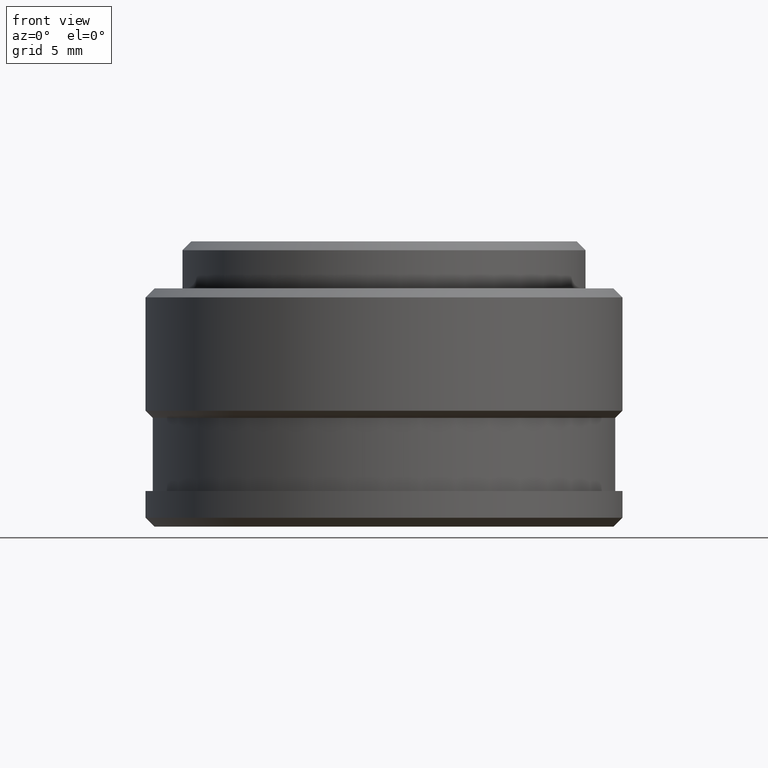
[diagram: clean part render]
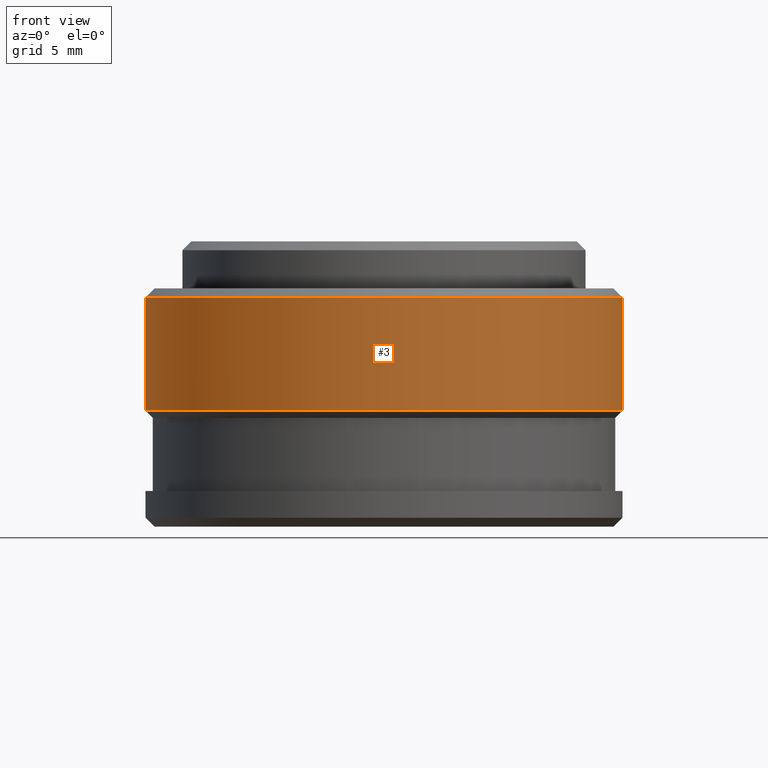
[diagram: same view with one face highlighted and labeled with its STEP entity id]
A machine part, front view. The second image highlights one B-rep face of the part: STEP entity #3.
In plain terms, the highlighted cylindrical surface (partial cylindrical patch) has radius 13.37 mm, axis along (-0, -0, -1).
Its self-contained STEP definition (entity closure, byte-faithful):
#3 = ADVANCED_FACE ( 'NONE', ( #484 ), #7, .T. ) ;
#5 = VERTEX_POINT ( 'NONE', #110 ) ;
#7 = CYLINDRICAL_SURFACE ( 'NONE', #476, 13.36999999999999900 ) ;
#20 = DIRECTION ( 'NONE',  ( -0.0000000000000000000, -0.0000000000000000000, -1.000000000000000000 ) ) ;
#57 = DIRECTION ( 'NONE',  ( 0.0000000000000000000, 0.0000000000000000000, -1.000000000000000000 ) ) ;
#68 = LINE ( 'NONE', #274, #422 ) ;
#83 = EDGE_CURVE ( 'NONE', #331, #504, #212, .T. ) ;
#94 = VECTOR ( 'NONE', #278, 1000.000000000000000 ) ;
#101 = AXIS2_PLACEMENT_3D ( 'NONE', #365, #57, #319 ) ;
#110 = CARTESIAN_POINT ( 'NONE',  ( -13.36999999999999900, 0.0000000000000000000, 6.500000000000008900 ) ) ;
#111 = CIRCLE ( 'NONE', #101, 13.36999999999999900 ) ;
#121 = EDGE_CURVE ( 'NONE', #331, #393, #111, .T. ) ;
#135 = DIRECTION ( 'NONE',  ( -0.0000000000000000000, -0.0000000000000000000, 1.000000000000000000 ) ) ;
#141 = EDGE_CURVE ( 'NONE', #393, #5, #68, .T. ) ;
#144 = DIRECTION ( 'NONE',  ( -0.0000000000000000000, -0.0000000000000000000, -1.000000000000000000 ) ) ;
#151 = ORIENTED_EDGE ( 'NONE', *, *, #121, .T. ) ;
#156 = CARTESIAN_POINT ( 'NONE',  ( 13.36999999999999900, 1.637352770460011200E-015, 12.86000000000000100 ) ) ;
#160 = CARTESIAN_POINT ( 'NONE',  ( 13.36999999999999900, 1.637352770460011200E-015, 6.500000000000008900 ) ) ;
#178 = EDGE_CURVE ( 'NONE', #5, #504, #406, .T. ) ;
#212 = LINE ( 'NONE', #279, #94 ) ;
#219 = ORIENTED_EDGE ( 'NONE', *, *, #178, .T. ) ;
#274 = CARTESIAN_POINT ( 'NONE',  ( -13.36999999999999900, 0.0000000000000000000, 13.36000000000000100 ) ) ;
#278 = DIRECTION ( 'NONE',  ( -0.0000000000000000000, -0.0000000000000000000, -1.000000000000000000 ) ) ;
#279 = CARTESIAN_POINT ( 'NONE',  ( 13.36999999999999900, 1.637352770460011200E-015, 13.36000000000000100 ) ) ;
#285 = ORIENTED_EDGE ( 'NONE', *, *, #141, .T. ) ;
#319 = DIRECTION ( 'NONE',  ( 1.000000000000000000, 0.0000000000000000000, 0.0000000000000000000 ) ) ;
#328 = DIRECTION ( 'NONE',  ( -1.000000000000000000, 0.0000000000000000000, 0.0000000000000000000 ) ) ;
#331 = VERTEX_POINT ( 'NONE', #156 ) ;
#340 = CARTESIAN_POINT ( 'NONE',  ( -13.36999999999999900, 0.0000000000000000000, 12.86000000000000100 ) ) ;
#365 = CARTESIAN_POINT ( 'NONE',  ( 0.0000000000000000000, 0.0000000000000000000, 12.86000000000000100 ) ) ;
#374 = ORIENTED_EDGE ( 'NONE', *, *, #83, .F. ) ;
#393 = VERTEX_POINT ( 'NONE', #340 ) ;
#399 = DIRECTION ( 'NONE',  ( 1.000000000000000000, 0.0000000000000000000, 0.0000000000000000000 ) ) ;
#406 = CIRCLE ( 'NONE', #510, 13.36999999999999900 ) ;
#422 = VECTOR ( 'NONE', #144, 1000.000000000000000 ) ;
#434 = EDGE_LOOP ( 'NONE', ( #374, #151, #285, #219 ) ) ;
#449 = CARTESIAN_POINT ( 'NONE',  ( 0.0000000000000000000, 0.0000000000000000000, 6.500000000000008900 ) ) ;
#476 = AXIS2_PLACEMENT_3D ( 'NONE', #563, #20, #328 ) ;
#484 = FACE_OUTER_BOUND ( 'NONE', #434, .T. ) ;
#504 = VERTEX_POINT ( 'NONE', #160 ) ;
#510 = AXIS2_PLACEMENT_3D ( 'NONE', #449, #135, #399 ) ;
#563 = CARTESIAN_POINT ( 'NONE',  ( 0.0000000000000000000, 0.0000000000000000000, 13.36000000000000100 ) ) ;